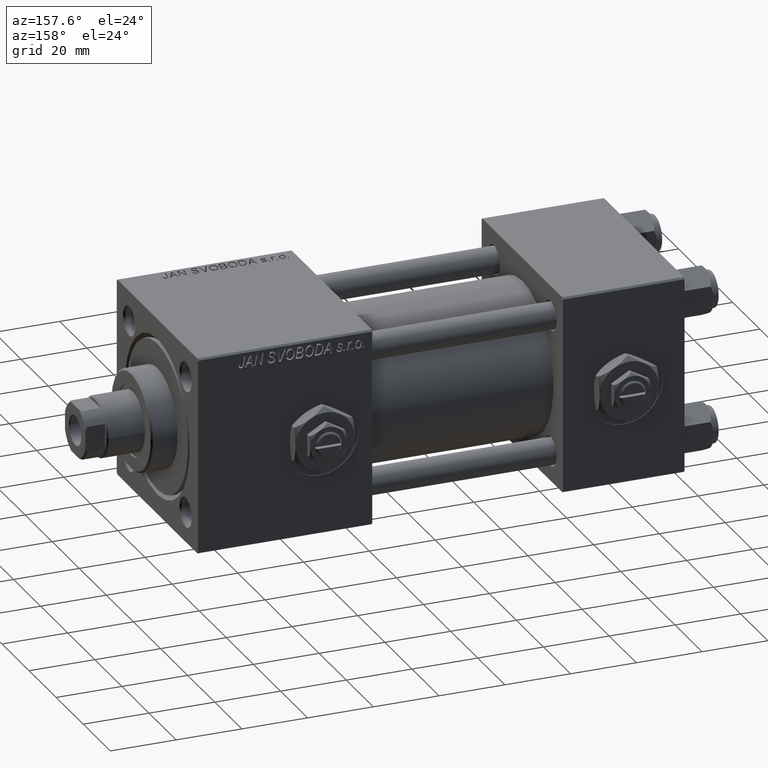
[diagram: clean part render]
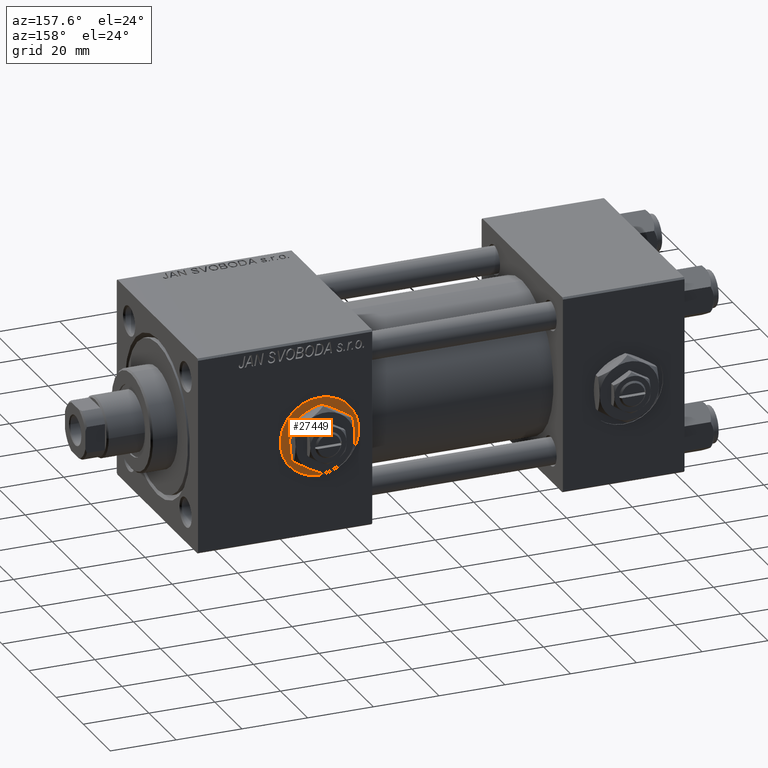
[diagram: same view with one face highlighted and labeled with its STEP entity id]
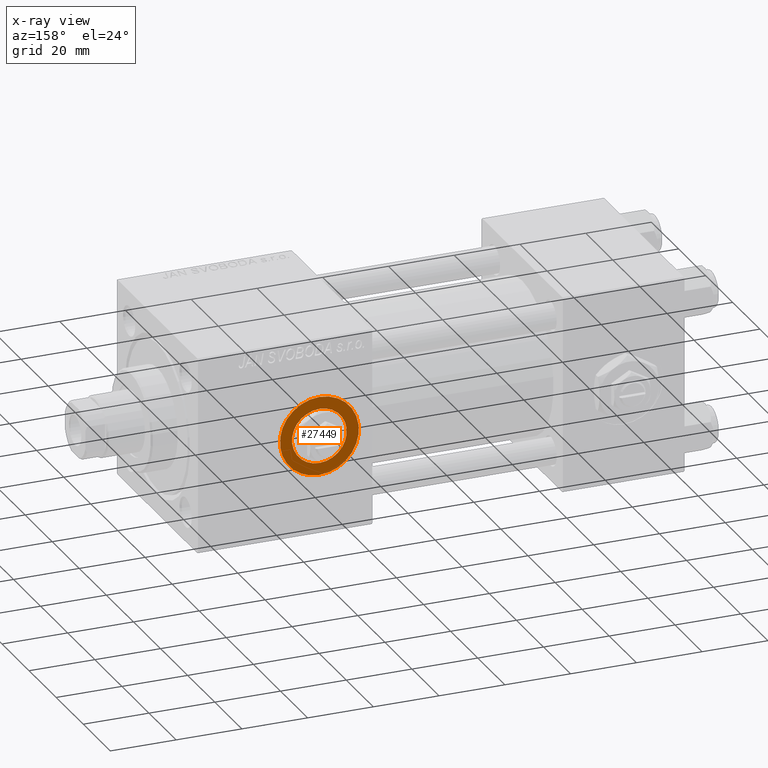
[diagram: x-ray of the same camera — body ghosted, the highlighted face saturated]
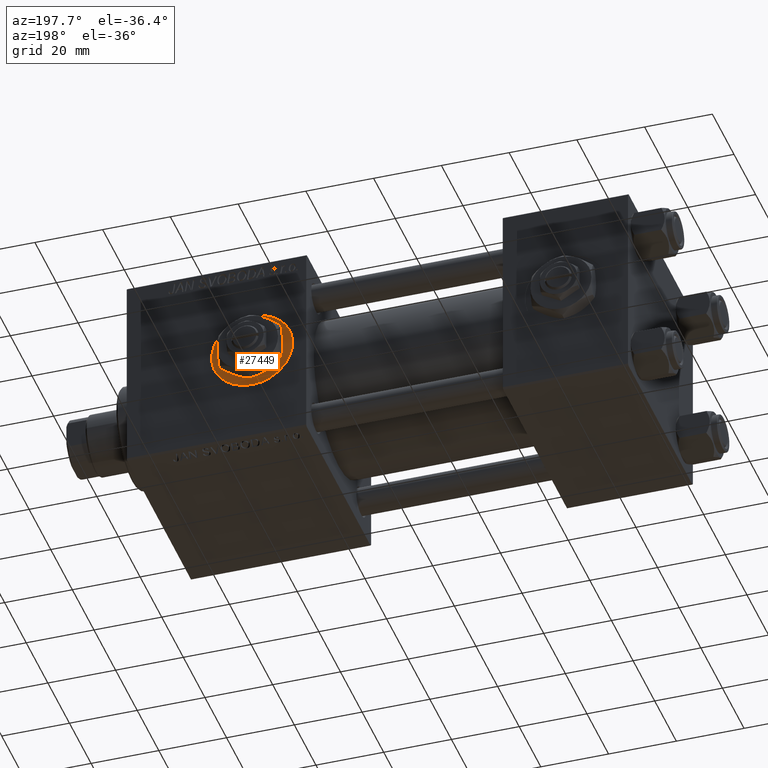
[diagram: same view with one face highlighted and labeled with its STEP entity id]
A machine part, auxiliary view. The second image highlights one B-rep face of the part: STEP entity #27449.
The next image is the same camera in x-ray: the body ghosted, the highlighted face saturated — about 0% of this face is hidden behind the body in this view.
A second angle (auxiliary view) of the same face is appended — the face is thin or edge-on in the first view.
In plain terms, the highlighted planar face has unit normal (0, 1, 0).
Its self-contained STEP definition (entity closure, byte-faithful):
#564 = AXIS2_PLACEMENT_3D ( 'NONE', #34719, #6687, #10134 ) ;
#667 = CARTESIAN_POINT ( 'NONE',  ( 111.0000000000000000, 29.80000000000000071, 0.000000000000000000 ) ) ;
#1648 = AXIS2_PLACEMENT_3D ( 'NONE', #13995, #46247, #6060 ) ;
#4475 = CARTESIAN_POINT ( 'NONE',  ( 111.0000000000000000, 29.80000000000000071, 0.000000000000000000 ) ) ;
#5010 = DIRECTION ( 'NONE',  ( 0.000000000000000000, 0.000000000000000000, 1.000000000000000000 ) ) ;
#6060 = DIRECTION ( 'NONE',  ( 0.000000000000000000, 0.000000000000000000, 1.000000000000000000 ) ) ;
#6687 = DIRECTION ( 'NONE',  ( 0.000000000000000000, 1.000000000000000000, 0.000000000000000000 ) ) ;
#7171 = CARTESIAN_POINT ( 'NONE',  ( 111.0000000000000000, 29.80000000000000071, -8.329999999999998295 ) ) ;
#8113 = CARTESIAN_POINT ( 'NONE',  ( 111.0000000000000000, 29.80000000000000071, 0.000000000000000000 ) ) ;
#8612 = DIRECTION ( 'NONE',  ( 0.000000000000000000, 1.000000000000000000, 0.000000000000000000 ) ) ;
#9024 = EDGE_CURVE ( 'NONE', #37105, #37435, #25897, .T. ) ;
#9131 = FACE_OUTER_BOUND ( 'NONE', #14441, .T. ) ;
#9241 = DIRECTION ( 'NONE',  ( 0.000000000000000000, 1.000000000000000000, 0.000000000000000000 ) ) ;
#10134 = DIRECTION ( 'NONE',  ( 0.000000000000000000, 0.000000000000000000, 1.000000000000000000 ) ) ;
#13960 = CARTESIAN_POINT ( 'NONE',  ( 111.0000000000000000, 29.80000000000000071, 8.329999999999998295 ) ) ;
#13995 = CARTESIAN_POINT ( 'NONE',  ( 111.0000000000000000, 29.80000000000000071, 0.000000000000000000 ) ) ;
#14441 = EDGE_LOOP ( 'NONE', ( #30545, #16373 ) ) ;
#16373 = ORIENTED_EDGE ( 'NONE', *, *, #50601, .T. ) ;
#16793 = DIRECTION ( 'NONE',  ( 0.000000000000000000, -0.000000000000000000, 1.000000000000000000 ) ) ;
#17734 = AXIS2_PLACEMENT_3D ( 'NONE', #667, #8612, #16793 ) ;
#20012 = DIRECTION ( 'NONE',  ( 0.000000000000000000, 1.000000000000000000, 0.000000000000000000 ) ) ;
#20433 = VERTEX_POINT ( 'NONE', #13960 ) ;
#21596 = CIRCLE ( 'NONE', #26662, 8.329999999999998295 ) ;
#21729 = EDGE_CURVE ( 'NONE', #44902, #20433, #42146, .T. ) ;
#25897 = CIRCLE ( 'NONE', #564, 11.99999999999998934 ) ;
#26662 = AXIS2_PLACEMENT_3D ( 'NONE', #4475, #9241, #5010 ) ;
#27449 = ADVANCED_FACE ( 'NONE', ( #49294, #9131 ), #32665, .T. ) ;
#28551 = ORIENTED_EDGE ( 'NONE', *, *, #40772, .F. ) ;
#30545 = ORIENTED_EDGE ( 'NONE', *, *, #9024, .T. ) ;
#32665 = PLANE ( 'NONE',  #17734 ) ;
#34491 = AXIS2_PLACEMENT_3D ( 'NONE', #8113, #20012, #44588 ) ;
#34719 = CARTESIAN_POINT ( 'NONE',  ( 111.0000000000000000, 29.80000000000000071, 0.000000000000000000 ) ) ;
#34827 = CARTESIAN_POINT ( 'NONE',  ( 111.0000000000000000, 29.80000000000000071, -11.99999999999998934 ) ) ;
#35983 = ORIENTED_EDGE ( 'NONE', *, *, #21729, .F. ) ;
#37105 = VERTEX_POINT ( 'NONE', #45290 ) ;
#37435 = VERTEX_POINT ( 'NONE', #34827 ) ;
#37858 = CIRCLE ( 'NONE', #34491, 11.99999999999998934 ) ;
#40772 = EDGE_CURVE ( 'NONE', #20433, #44902, #21596, .T. ) ;
#42146 = CIRCLE ( 'NONE', #1648, 8.329999999999998295 ) ;
#44588 = DIRECTION ( 'NONE',  ( 0.000000000000000000, 0.000000000000000000, 1.000000000000000000 ) ) ;
#44902 = VERTEX_POINT ( 'NONE', #7171 ) ;
#45290 = CARTESIAN_POINT ( 'NONE',  ( 111.0000000000000000, 29.80000000000000071, 11.99999999999998934 ) ) ;
#46247 = DIRECTION ( 'NONE',  ( 0.000000000000000000, 1.000000000000000000, 0.000000000000000000 ) ) ;
#49294 = FACE_BOUND ( 'NONE', #50885, .T. ) ;
#50601 = EDGE_CURVE ( 'NONE', #37435, #37105, #37858, .T. ) ;
#50885 = EDGE_LOOP ( 'NONE', ( #28551, #35983 ) ) ;